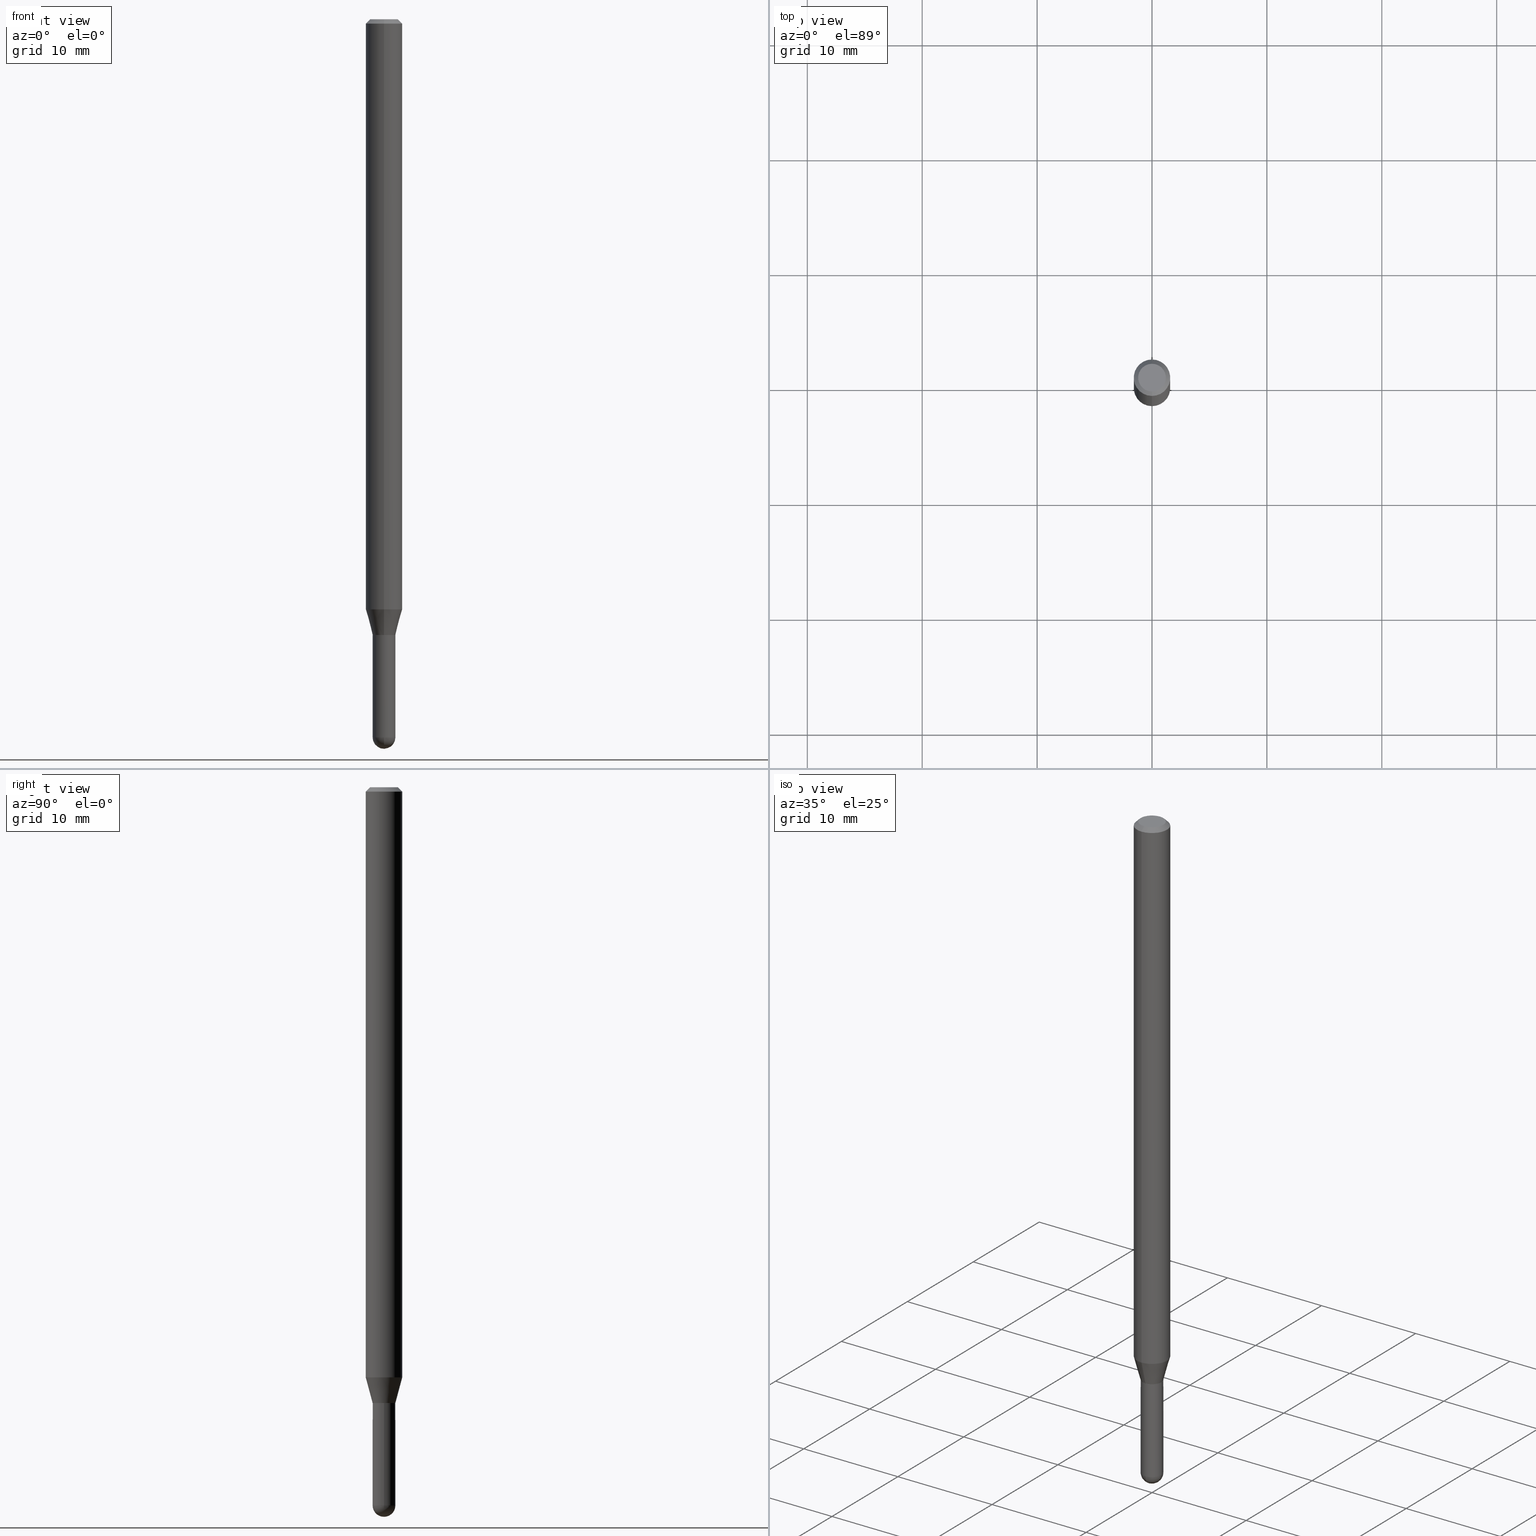
[diagram: canonical four-view strip — front | top / right | iso, engineering-drawing reading convention]
A machine part, canonical four-view strip (front | top / right | iso — engineering-drawing reading convention). The complete STEP part file that produces these views, byte-faithful:
ISO-10303-21;
HEADER;
FILE_DESCRIPTION (( 'STEP AP203' ),
    '1' );
FILE_NAME ('04471.STEP',
    '2024-03-08T19:51:53',
    ( '' ),
    ( '' ),
    'SwSTEP 2.0',
    'SolidWorks 2023',
    '' );
FILE_SCHEMA (( 'CONFIG_CONTROL_DESIGN' ));
ENDSEC;

DATA;
#1 = AXIS2_PLACEMENT_3D ( 'NONE', #416, #333, #370 ) ;
#2 = ORIENTED_EDGE ( 'NONE', *, *, #24, .F. ) ;
#3 = PERSON_AND_ORGANIZATION_ROLE ( 'design_supplier' ) ;
#4 = EDGE_LOOP ( 'NONE', ( #235, #188, #93, #381 ) ) ;
#5 = MANIFOLD_SOLID_BREP ( 'Body-Move/Copy2[1]', #218 ) ;
#6 = CARTESIAN_POINT ( 'NONE',  ( -2.688440630908695921E-16, -0.03850000000000736167, -2.109999999999999876 ) ) ;
#7 = DIRECTION ( 'NONE',  ( -6.982962677686266711E-15, -1.000000000000000000, 3.491435291352395773E-15 ) ) ;
#8 = VERTEX_POINT ( 'NONE', #94 ) ;
#9 = DIRECTION ( 'NONE',  ( -2.445500960976067798E-29, 3.491435291352395379E-15, 1.000000000000000000 ) ) ;
#10 = ADVANCED_FACE ( 'NONE', ( #122 ), #250, .F. ) ;
#11 = AXIS2_PLACEMENT_3D ( 'NONE', #207, #247, #363 ) ;
#12 = VECTOR ( 'NONE', #37, 39.37007874015748143 ) ;
#13 = PRODUCT_DEFINITION_FORMATION_WITH_SPECIFIED_SOURCE ( 'ANY', '', #325, .NOT_KNOWN. ) ;
#14 = FACE_OUTER_BOUND ( 'NONE', #507, .T. ) ;
#15 = CARTESIAN_POINT ( 'NONE',  ( 0.03899999999999999994, -8.252116144355773169E-15, -2.460999999999999854 ) ) ;
#16 = CYLINDRICAL_SURFACE ( 'NONE', #347, 0.06250000000000000000 ) ;
#17 = ADVANCED_FACE ( 'NONE', ( #209 ), #254, .T. ) ;
#18 = DIRECTION ( 'NONE',  ( -6.982962677686265922E-15, -1.000000000000000000, 4.370956789862821150E-15 ) ) ;
#19 = VECTOR ( 'NONE', #382, 39.37007874015748143 ) ;
#20 = DIRECTION ( 'NONE',  ( -2.445500960976067798E-29, 3.491435291352395379E-15, 1.000000000000000000 ) ) ;
#21 = DIRECTION ( 'NONE',  ( -6.982962677686265922E-15, -1.000000000000000000, 0.000000000000000000 ) ) ;
#22 = DIRECTION ( 'NONE',  ( -2.445500960976067798E-29, 3.491435291352395379E-15, 1.000000000000000000 ) ) ;
#23 = DIRECTION ( 'NONE',  ( -6.982962677686265922E-15, -1.000000000000000000, 3.491435291352395379E-15 ) ) ;
#24 = EDGE_CURVE ( 'NONE', #232, #312, #437, .T. ) ;
#25 = LINE ( 'NONE', #60, #69 ) ;
#26 = AXIS2_PLACEMENT_3D ( 'NONE', #66, #22, #21 ) ;
#27 = CC_DESIGN_APPROVAL ( #86, ( #355 ) ) ;
#28 = DIRECTION ( 'NONE',  ( -2.445468806185136597E-29, 3.491481338843145583E-15, 1.000000000000000000 ) ) ;
#29 = EDGE_LOOP ( 'NONE', ( #343, #398 ) ) ;
#30 = FACE_OUTER_BOUND ( 'NONE', #403, .T. ) ;
#31 = DIRECTION ( 'NONE',  ( 2.445500960976067798E-29, -3.491435291352395379E-15, -1.000000000000000000 ) ) ;
#32 = EDGE_CURVE ( 'NONE', #152, #161, #289, .T. ) ;
#33 = EDGE_LOOP ( 'NONE', ( #316, #459, #309, #160, #425 ) ) ;
#34 = APPROVAL_STATUS ( 'not_yet_approved' ) ;
#35 = ADVANCED_BREP_SHAPE_REPRESENTATION ( '04471', ( #5, #178, #480 ), #140 ) ;
#36 = DIMENSIONAL_EXPONENTS ( 1.000000000000000000, 0.000000000000000000, 0.000000000000000000, 0.000000000000000000, 0.000000000000000000, 0.000000000000000000, 0.000000000000000000 ) ;
#37 = DIRECTION ( 'NONE',  ( -2.445500960976067798E-29, 3.491435291352395379E-15, 1.000000000000000000 ) ) ;
#38 = EDGE_LOOP ( 'NONE', ( #435, #124, #116, #239 ) ) ;
#39 = PERSON_AND_ORGANIZATION_ROLE ( 'design_owner' ) ;
#40 = APPROVAL_PERSON_ORGANIZATION ( #164, #86, #76 ) ;
#41 = DIRECTION ( 'NONE',  ( -4.937700262167370586E-15, -0.7071067811869493624, 0.7071067811861454500 ) ) ;
#42 = VERTEX_POINT ( 'NONE', #52 ) ;
#43 = DATE_TIME_ROLE ( 'classification_date' ) ;
#44 = ORIENTED_EDGE ( 'NONE', *, *, #107, .T. ) ;
#45 = DATE_AND_TIME ( #352, #290 ) ;
#46 = ORIENTED_EDGE ( 'NONE', *, *, #301, .T. ) ;
#47 = CARTESIAN_POINT ( 'NONE',  ( 1.601862342554791260E-45, -2.286974654245064998E-31, -6.550242130820685356E-17 ) ) ;
#48 = PERSON_AND_ORGANIZATION_ROLE ( 'creator' ) ;
#49 = VECTOR ( 'NONE', #441, 39.37007874015748143 ) ;
#50 = ORIENTED_EDGE ( 'NONE', *, *, #72, .F. ) ;
#51 = CIRCLE ( 'NONE', #423, 0.03899999999999999994 ) ;
#52 = CARTESIAN_POINT ( 'NONE',  ( -0.03899999999999999994, -7.702668932979569039E-15, -2.110000000000000320 ) ) ;
#53 = DIRECTION ( 'NONE',  ( -6.982962677686265922E-15, -1.000000000000000000, 3.491435291352395379E-15 ) ) ;
#54 = ADVANCED_FACE ( 'NONE', ( #14 ), #16, .T. ) ;
#55 = ORIENTED_EDGE ( 'NONE', *, *, #503, .T. ) ;
#56 = VECTOR ( 'NONE', #302, 39.37007874015748854 ) ;
#57 = DIRECTION ( 'NONE',  ( -2.445500960976067798E-29, 3.491435291352395379E-15, 1.000000000000000000 ) ) ;
#58 = ADVANCED_FACE ( 'NONE', ( #396 ), #293, .F. ) ;
#59 = DIRECTION ( 'NONE',  ( -2.445500960976067798E-29, 3.491435291352395379E-15, 1.000000000000000000 ) ) ;
#60 = CARTESIAN_POINT ( 'NONE',  ( -4.287811248607203282E-16, -0.06250000000000005551, -0.01499999999999984852 ) ) ;
#61 = VECTOR ( 'NONE', #285, 39.37007874015748143 ) ;
#62 = CONICAL_SURFACE ( 'NONE', #460, 0.03849999999999999256, 0.7853981633980202659 ) ;
#63 = CARTESIAN_POINT ( 'NONE',  ( 1.601862342554791260E-45, -2.286974654245064998E-31, -6.550242130820685356E-17 ) ) ;
#64 = DIRECTION ( 'NONE',  ( -6.982962677686265922E-15, -1.000000000000000000, 3.491435291352395379E-15 ) ) ;
#65 = EDGE_CURVE ( 'NONE', #95, #42, #174, .T. ) ;
#66 = CARTESIAN_POINT ( 'NONE',  ( 5.160007027659503724E-29, -7.366928464753554588E-15, -2.110000000000000320 ) ) ;
#67 = CARTESIAN_POINT ( 'NONE',  ( -2.771116669463784777E-16, -0.03900000000000854172, -2.460999999999999854 ) ) ;
#68 = CARTESIAN_POINT ( 'NONE',  ( 6.112004441198941993E-29, -8.731091408366202985E-15, -2.500000000000000000 ) ) ;
#69 = VECTOR ( 'NONE', #181, 39.37007874015748143 ) ;
#70 = ORIENTED_EDGE ( 'NONE', *, *, #32, .F. ) ;
#71 = AXIS2_PLACEMENT_3D ( 'NONE', #223, #405, #23 ) ;
#72 = EDGE_CURVE ( 'NONE', #446, #8, #399, .T. ) ;
#73 = DIRECTION ( 'NONE',  ( 1.000000000000000000, -6.982962677686258033E-15, 0.000000000000000000 ) ) ;
#74 = EDGE_LOOP ( 'NONE', ( #354, #130, #119, #125 ) ) ;
#75 = DESIGN_CONTEXT ( 'detailed design', #278, 'design' ) ;
#76 = APPROVAL_ROLE ( '' ) ;
#77 = DIRECTION ( 'NONE',  ( -6.982962677686266711E-15, -1.000000000000000000, 0.000000000000000000 ) ) ;
#78 = ORIENTED_EDGE ( 'NONE', *, *, #65, .F. ) ;
#79 = CYLINDRICAL_SURFACE ( 'NONE', #479, 0.03899999999999999994 ) ;
#80 = ORIENTED_EDGE ( 'NONE', *, *, #133, .T. ) ;
#81 = CIRCLE ( 'NONE', #406, 0.03899999999999999994 ) ;
#82 = DATE_AND_TIME ( #317, #372 ) ;
#83 = CARTESIAN_POINT ( 'NONE',  ( 5.160007027659502603E-29, -7.366928464753553010E-15, -2.109999999999999876 ) ) ;
#84 = ORIENTED_EDGE ( 'NONE', *, *, #342, .F. ) ;
#85 = CC_DESIGN_PERSON_AND_ORGANIZATION_ASSIGNMENT ( #242, #3, ( #13 ) ) ;
#86 = APPROVAL ( #34, 'UNSPECIFIED' ) ;
#87 = CARTESIAN_POINT ( 'NONE',  ( 0.000000000000000000, 0.000000000000000000, 0.000000000000000000 ) ) ;
#88 = APPROVAL_STATUS ( 'not_yet_approved' ) ;
#89 = DIRECTION ( 'NONE',  ( -6.982962677686265922E-15, -1.000000000000000000, 3.491435291352395379E-15 ) ) ;
#90 = CIRCLE ( 'NONE', #248, 0.03899999999999964606 ) ;
#91 = ORGANIZATION ( 'UNSPECIFIED', 'UNSPECIFIED', '' ) ;
#92 = ADVANCED_FACE ( 'NONE', ( #404 ), #166, .T. ) ;
#93 = ORIENTED_EDGE ( 'NONE', *, *, #126, .F. ) ;
#94 = CARTESIAN_POINT ( 'NONE',  ( -3.773273898774340269E-16, -0.04749999999999999362, 1.003407550310319580E-16 ) ) ;
#95 = VERTEX_POINT ( 'NONE', #168 ) ;
#96 = VECTOR ( 'NONE', #105, 39.37007874015748143 ) ;
#97 = CARTESIAN_POINT ( 'NONE',  ( 0.000000000000000000, 0.000000000000000000, 0.000000000000000000 ) ) ;
#98 = DIRECTION ( 'NONE',  ( -2.445500960976067798E-29, 3.491435291352395379E-15, 1.000000000000000000 ) ) ;
#99 = CARTESIAN_POINT ( 'NONE',  ( 5.158784277179015445E-29, -7.365182747107878740E-15, -2.109500000000000153 ) ) ;
#100 = VECTOR ( 'NONE', #41, 39.37007874015748854 ) ;
#101 = ADVANCED_FACE ( 'NONE', ( #327 ), #252, .T. ) ;
#102 = DIRECTION ( 'NONE',  ( -6.982962677686265922E-15, -1.000000000000000000, 0.000000000000000000 ) ) ;
#103 = DIRECTION ( 'NONE',  ( 2.438088387897960049E-29, -3.491481338843145188E-15, -1.000000000000000000 ) ) ;
#104 = DIRECTION ( 'NONE',  ( 6.982962677686265922E-15, 1.000000000000000000, 0.000000000000000000 ) ) ;
#105 = DIRECTION ( 'NONE',  ( -2.445468806185136877E-29, 3.491481338843145188E-15, 1.000000000000000000 ) ) ;
#106 = VERTEX_POINT ( 'NONE', #445 ) ;
#107 = EDGE_CURVE ( 'NONE', #152, #232, #414, .T. ) ;
#108 = DIRECTION ( 'NONE',  ( 1.000000000000000000, -6.982962677686283277E-15, 0.000000000000000000 ) ) ;
#109 = VECTOR ( 'NONE', #57, 39.37007874015748143 ) ;
#110 = AXIS2_PLACEMENT_3D ( 'NONE', #350, #147, #430 ) ;
#111 = EDGE_LOOP ( 'NONE', ( #70, #474, #157, #200 ) ) ;
#112 = DIRECTION ( 'NONE',  ( -2.445500960976067798E-29, 3.491435291352395379E-15, 1.000000000000000000 ) ) ;
#113 = EDGE_LOOP ( 'NONE', ( #78, #421, #244, #46, #389 ) ) ;
#114 = DATE_AND_TIME ( #357, #170 ) ;
#115 = DIRECTION ( 'NONE',  ( -2.445500960976067798E-29, 3.491435291352395379E-15, 1.000000000000000000 ) ) ;
#116 = ORIENTED_EDGE ( 'NONE', *, *, #362, .F. ) ;
#117 = DIRECTION ( 'NONE',  ( -6.982962677686266711E-15, -1.000000000000000000, 0.000000000000000000 ) ) ;
#118 = EDGE_CURVE ( 'NONE', #232, #383, #337, .T. ) ;
#119 = ORIENTED_EDGE ( 'NONE', *, *, #295, .T. ) ;
#120 = AXIS2_PLACEMENT_3D ( 'NONE', #186, #457, #77 ) ;
#121 = PERSON_AND_ORGANIZATION ( #221, #91 ) ;
#122 = FACE_OUTER_BOUND ( 'NONE', #280, .T. ) ;
#123 = COORDINATED_UNIVERSAL_TIME_OFFSET ( 5, 0, .BEHIND. ) ;
#124 = ORIENTED_EDGE ( 'NONE', *, *, #331, .T. ) ;
#125 = ORIENTED_EDGE ( 'NONE', *, *, #418, .F. ) ;
#126 = EDGE_CURVE ( 'NONE', #383, #161, #261, .T. ) ;
#127 = DIRECTION ( 'NONE',  ( 1.000000000000000000, -6.982962677686265922E-15, 4.876176775795935793E-29 ) ) ;
#128 = AXIS2_PLACEMENT_3D ( 'NONE', #97, #214, #141 ) ;
#129 = CONICAL_SURFACE ( 'NONE', #26, 0.03899999999999964606, 0.2617993877991566798 ) ;
#130 = ORIENTED_EDGE ( 'NONE', *, *, #201, .T. ) ;
#131 = CARTESIAN_POINT ( 'NONE',  ( -2.723355444297103312E-16, -0.03900000000000701517, -2.110000000000000320 ) ) ;
#132 = CARTESIAN_POINT ( 'NONE',  ( 6.018298732021620914E-29, -8.592535574892981353E-15, -2.460999999999999854 ) ) ;
#133 = EDGE_CURVE ( 'NONE', #312, #149, #443, .T. ) ;
#134 = CIRCLE ( 'NONE', #282, 0.06250000000000000000 ) ;
#135 = CARTESIAN_POINT ( 'NONE',  ( -2.723355444297638258E-16, -0.03899999999999992362, 1.361659763627431492E-16 ) ) ;
#136 = DIRECTION ( 'NONE',  ( 1.000000000000000000, -6.982962677686258033E-15, 0.000000000000000000 ) ) ;
#137 = CC_DESIGN_PERSON_AND_ORGANIZATION_ASSIGNMENT ( #159, #394, ( #359 ) ) ;
#138 = FACE_OUTER_BOUND ( 'NONE', #195, .T. ) ;
#139 = AXIS2_PLACEMENT_3D ( 'NONE', #83, #271, #240 ) ;
#140 =( GEOMETRIC_REPRESENTATION_CONTEXT ( 3 ) GLOBAL_UNCERTAINTY_ASSIGNED_CONTEXT ( ( #217 ) ) GLOBAL_UNIT_ASSIGNED_CONTEXT ( ( #377, #340, #473 ) ) REPRESENTATION_CONTEXT ( 'NONE', 'WORKASPACE' ) );
#141 = DIRECTION ( 'NONE',  ( -6.982962677686265922E-15, -1.000000000000000000, 3.491435291352395379E-15 ) ) ;
#142 = CARTESIAN_POINT ( 'NONE',  ( 4.364351673553919652E-16, 0.06249999999999995143, -0.01500000000000028394 ) ) ;
#143 = EDGE_CURVE ( 'NONE', #468, #161, #375, .T. ) ;
#144 = CARTESIAN_POINT ( 'NONE',  ( 3.668251441464117918E-31, -5.237152937028615846E-17, -0.01500000000000006710 ) ) ;
#145 = ORIENTED_EDGE ( 'NONE', *, *, #153, .T. ) ;
#146 = PLANE ( 'NONE',  #71 ) ;
#147 = DIRECTION ( 'NONE',  ( -2.445468806185136597E-29, 3.491481338843145583E-15, 1.000000000000000000 ) ) ;
#148 = CIRCLE ( 'NONE', #219, 0.03899999999999999994 ) ;
#149 = VERTEX_POINT ( 'NONE', #224 ) ;
#150 = APPROVAL_ROLE ( '' ) ;
#151 = FACE_OUTER_BOUND ( 'NONE', #33, .T. ) ;
#152 = VERTEX_POINT ( 'NONE', #265 ) ;
#153 = EDGE_CURVE ( 'NONE', #232, #152, #90, .T. ) ;
#154 = DIRECTION ( 'NONE',  ( -2.445500960976067798E-29, 3.491435291352395379E-15, 1.000000000000000000 ) ) ;
#155 = ORIENTED_EDGE ( 'NONE', *, *, #32, .T. ) ;
#156 = SHAPE_DEFINITION_REPRESENTATION ( #314, #35 ) ;
#157 = ORIENTED_EDGE ( 'NONE', *, *, #118, .T. ) ;
#158 = AXIS2_PLACEMENT_3D ( 'NONE', #165, #249, #269 ) ;
#159 = PERSON_AND_ORGANIZATION ( #221, #91 ) ;
#160 = ORIENTED_EDGE ( 'NONE', *, *, #301, .F. ) ;
#161 = VERTEX_POINT ( 'NONE', #264 ) ;
#162 = PRODUCT_RELATED_PRODUCT_CATEGORY ( 'detail', '', ( #325 ) ) ;
#163 = ADVANCED_FACE ( 'NONE', ( #216 ), #260, .T. ) ;
#164 = PERSON_AND_ORGANIZATION ( #221, #91 ) ;
#165 = CARTESIAN_POINT ( 'NONE',  ( 5.160007027659502603E-29, -7.366928464753553010E-15, -2.109999999999999876 ) ) ;
#166 = CYLINDRICAL_SURFACE ( 'NONE', #502, 0.03899999999999999994 ) ;
#167 = ORIENTED_EDGE ( 'NONE', *, *, #274, .F. ) ;
#168 = CARTESIAN_POINT ( 'NONE',  ( -0.03899999999999999994, -7.702668932979569039E-15, -2.460999999999999854 ) ) ;
#169 = CIRCLE ( 'NONE', #237, 0.06250000000000000000 ) ;
#170 = LOCAL_TIME ( 14, 51, 53.00000000000000000, #123 ) ;
#171 = EDGE_LOOP ( 'NONE', ( #145, #272, #199, #2 ) ) ;
#172 = CC_DESIGN_PERSON_AND_ORGANIZATION_ASSIGNMENT ( #284, #346, ( #13 ) ) ;
#173 = APPROVAL ( #88, 'UNSPECIFIED' ) ;
#174 = LINE ( 'NONE', #402, #61 ) ;
#175 = DIRECTION ( 'NONE',  ( -2.445500960976067798E-29, 3.491435291352395379E-15, 1.000000000000000000 ) ) ;
#176 = AXIS2_PLACEMENT_3D ( 'NONE', #47, #9, #7 ) ;
#177 = CIRCLE ( 'NONE', #358, 0.03899999999999989586 ) ;
#178 = MANIFOLD_SOLID_BREP ( 'Body-Move/Copy2[2]', #202 ) ;
#179 = CARTESIAN_POINT ( 'NONE',  ( 5.159939181050639071E-29, -7.367025624959036939E-15, -2.110000000000000320 ) ) ;
#180 = ADVANCED_FACE ( 'NONE', ( #298 ), #129, .T. ) ;
#181 = DIRECTION ( 'NONE',  ( -4.851104656540964275E-15, -0.7071067811865500152, -0.7071067811865450192 ) ) ;
#182 = CARTESIAN_POINT ( 'NONE',  ( 0.000000000000000000, 0.000000000000000000, 0.000000000000000000 ) ) ;
#183 = CARTESIAN_POINT ( 'NONE',  ( 2.723355444298159400E-16, 0.03899999999999263084, -2.110000000000000320 ) ) ;
#184 = ADVANCED_FACE ( 'NONE', ( #138 ), #194, .T. ) ;
#185 = LOCAL_TIME ( 14, 51, 53.00000000000000000, #310 ) ;
#186 = CARTESIAN_POINT ( 'NONE',  ( 5.160007027659502603E-29, -7.366928464753553010E-15, -2.109999999999999876 ) ) ;
#187 = DIRECTION ( 'NONE',  ( 2.445500960976067798E-29, -3.491435291352395379E-15, -1.000000000000000000 ) ) ;
#188 = ORIENTED_EDGE ( 'NONE', *, *, #143, .T. ) ;
#189 = DIRECTION ( 'NONE',  ( -6.982962677686266711E-15, -1.000000000000000000, 3.491435291352395773E-15 ) ) ;
#190 = ORIENTED_EDGE ( 'NONE', *, *, #253, .F. ) ;
#191 = PERSON_AND_ORGANIZATION ( #221, #91 ) ;
#192 = AXIS2_PLACEMENT_3D ( 'NONE', #410, #20, #334 ) ;
#193 = CARTESIAN_POINT ( 'NONE',  ( 5.160007027659502603E-29, -7.366928464753553010E-15, -2.109999999999999876 ) ) ;
#194 = CONICAL_SURFACE ( 'NONE', #307, 0.03899999999999964606, 0.2617993877991566798 ) ;
#195 = EDGE_LOOP ( 'NONE', ( #167, #44, #208, #428 ) ) ;
#196 = EDGE_CURVE ( 'NONE', #8, #345, #25, .T. ) ;
#197 = CALENDAR_DATE ( 2024, 8, 3 ) ;
#198 = CARTESIAN_POINT ( 'NONE',  ( -4.364351673553916201E-16, -0.06250000000000000000, 2.182147057095247112E-16 ) ) ;
#199 = ORIENTED_EDGE ( 'NONE', *, *, #133, .F. ) ;
#200 = ORIENTED_EDGE ( 'NONE', *, *, #126, .T. ) ;
#201 = EDGE_CURVE ( 'NONE', #149, #312, #270, .T. ) ;
#202 = CLOSED_SHELL ( 'NONE', ( #10, #336, #390, #54, #180, #184, #163, #452, #58, #495, #431, #243 ) ) ;
#203 = DIRECTION ( 'NONE',  ( -2.445500960976067798E-29, 3.491435291352395379E-15, 1.000000000000000000 ) ) ;
#204 = AXIS2_PLACEMENT_3D ( 'NONE', #279, #28, #73 ) ;
#205 = CALENDAR_DATE ( 2024, 8, 3 ) ;
#206 = ORIENTED_EDGE ( 'NONE', *, *, #196, .T. ) ;
#207 = CARTESIAN_POINT ( 'NONE',  ( 3.316907271900976096E-16, 0.04749999999999999362, -1.985943869933421890E-16 ) ) ;
#208 = ORIENTED_EDGE ( 'NONE', *, *, #24, .T. ) ;
#209 = FACE_OUTER_BOUND ( 'NONE', #444, .T. ) ;
#210 = ORIENTED_EDGE ( 'NONE', *, *, #374, .T. ) ;
#211 = AXIS2_PLACEMENT_3D ( 'NONE', #449, #175, #491 ) ;
#212 = CC_DESIGN_PERSON_AND_ORGANIZATION_ASSIGNMENT ( #121, #39, ( #325 ) ) ;
#213 = ORIENTED_EDGE ( 'NONE', *, *, #143, .F. ) ;
#214 = DIRECTION ( 'NONE',  ( -2.445500960976067798E-29, 3.491435291352395379E-15, 1.000000000000000000 ) ) ;
#215 = EDGE_CURVE ( 'NONE', #407, #276, #371, .T. ) ;
#216 = FACE_OUTER_BOUND ( 'NONE', #74, .T. ) ;
#217 = UNCERTAINTY_MEASURE_WITH_UNIT (LENGTH_MEASURE( 1.000000000000000082E-05 ), #377, 'distance_accuracy_value', 'NONE');
#218 = CLOSED_SHELL ( 'NONE', ( #400, #101, #488, #17, #92 ) ) ;
#219 = AXIS2_PLACEMENT_3D ( 'NONE', #179, #369, #136 ) ;
#220 = DIRECTION ( 'NONE',  ( -2.445500960976067798E-29, 3.491435291352395379E-15, 1.000000000000000000 ) ) ;
#221 = PERSON ( 'UNSPECIFIED', 'UNSPECIFIED', 'UNSPECIFIED', ('UNSPECIFIED'), ('UNSPECIFIED'), ('UNSPECIFIED') ) ;
#222 = DIRECTION ( 'NONE',  ( -6.982962677686266711E-15, -1.000000000000000000, 0.000000000000000000 ) ) ;
#223 = CARTESIAN_POINT ( 'NONE',  ( 5.160007027659503724E-29, -7.366928464753554588E-15, -2.110000000000000320 ) ) ;
#224 = CARTESIAN_POINT ( 'NONE',  ( 4.440892098501117228E-16, 0.06249999999999289457, -2.022296806022132909 ) ) ;
#225 = LENGTH_MEASURE_WITH_UNIT ( LENGTH_MEASURE( 0.02539999999999999897 ), #493 );
#226 = AXIS2_PLACEMENT_3D ( 'NONE', #329, #475, #53 ) ;
#227 = AXIS2_PLACEMENT_3D ( 'NONE', #99, #490, #222 ) ;
#228 = APPROVAL_PERSON_ORGANIZATION ( #273, #257, #150 ) ;
#229 = LINE ( 'NONE', #388, #100 ) ;
#230 = ORIENTED_EDGE ( 'NONE', *, *, #472, .T. ) ;
#231 = CARTESIAN_POINT ( 'NONE',  ( 3.668251441464117918E-31, -5.237152937028615846E-17, -0.01500000000000006710 ) ) ;
#232 = VERTEX_POINT ( 'NONE', #299 ) ;
#233 = COORDINATED_UNIVERSAL_TIME_OFFSET ( 5, 0, .BEHIND. ) ;
#234 = CARTESIAN_POINT ( 'NONE',  ( 6.018298732021620914E-29, -8.592535574892981353E-15, -2.460999999999999854 ) ) ;
#235 = ORIENTED_EDGE ( 'NONE', *, *, #439, .T. ) ;
#236 = DIRECTION ( 'NONE',  ( 1.000000000000000000, -6.982962677686265922E-15, 4.876176775795935793E-29 ) ) ;
#237 = AXIS2_PLACEMENT_3D ( 'NONE', #144, #315, #500 ) ;
#238 = CC_DESIGN_SECURITY_CLASSIFICATION ( #359, ( #13 ) ) ;
#239 = ORIENTED_EDGE ( 'NONE', *, *, #447, .F. ) ;
#240 = DIRECTION ( 'NONE',  ( -6.982962677686266711E-15, -1.000000000000000000, 0.000000000000000000 ) ) ;
#241 = ORIENTED_EDGE ( 'NONE', *, *, #412, .T. ) ;
#242 = PERSON_AND_ORGANIZATION ( #221, #91 ) ;
#243 = ADVANCED_FACE ( 'NONE', ( #332 ), #454, .F. ) ;
#244 = ORIENTED_EDGE ( 'NONE', *, *, #481, .T. ) ;
#245 = DATE_TIME_ROLE ( 'creation_date' ) ;
#246 = ORIENTED_EDGE ( 'NONE', *, *, #215, .T. ) ;
#247 = DIRECTION ( 'NONE',  ( 2.445500960976067238E-29, -3.491435291352395379E-15, -1.000000000000000000 ) ) ;
#248 = AXIS2_PLACEMENT_3D ( 'NONE', #451, #98, #102 ) ;
#249 = DIRECTION ( 'NONE',  ( -2.445500960976067798E-29, 3.491435291352395379E-15, 1.000000000000000000 ) ) ;
#250 = CYLINDRICAL_SURFACE ( 'NONE', #226, 0.03899999999999992362 ) ;
#251 = APPLICATION_CONTEXT ( 'configuration controlled 3d designs of mechanical parts and assemblies' ) ;
#252 = SPHERICAL_SURFACE ( 'NONE', #288, 0.03899999999999989586 ) ;
#253 = EDGE_CURVE ( 'NONE', #498, #276, #51, .T. ) ;
#254 = SPHERICAL_SURFACE ( 'NONE', #485, 0.03899999999999989586 ) ;
#255 = CONICAL_SURFACE ( 'NONE', #378, 0.06250000000000000000, 0.7853981633974483900 ) ;
#256 = DIRECTION ( 'NONE',  ( -1.000000000000000000, 6.982962677686265922E-15, -4.883557194083112340E-29 ) ) ;
#257 = APPROVAL ( #426, 'UNSPECIFIED' ) ;
#258 = EDGE_CURVE ( 'NONE', #42, #395, #148, .T. ) ;
#259 = LINE ( 'NONE', #413, #262 ) ;
#260 = CYLINDRICAL_SURFACE ( 'NONE', #128, 0.06250000000000000000 ) ;
#261 = CIRCLE ( 'NONE', #227, 0.03900000000000019423 ) ;
#262 = VECTOR ( 'NONE', #453, 39.37007874015748143 ) ;
#263 = AXIS2_PLACEMENT_3D ( 'NONE', #330, #482, #304 ) ;
#264 = CARTESIAN_POINT ( 'NONE',  ( 2.771116669464910383E-16, 0.03899999999999268635, -2.109500000000000153 ) ) ;
#265 = CARTESIAN_POINT ( 'NONE',  ( 3.606004383983001233E-16, 0.03899999999999227696, -2.110000000000000320 ) ) ;
#266 = CC_DESIGN_PERSON_AND_ORGANIZATION_ASSIGNMENT ( #191, #48, ( #355 ) ) ;
#267 = CARTESIAN_POINT ( 'NONE',  ( 0.03899999999999999994, -7.639361169388800962E-15, -2.110000000000000320 ) ) ;
#268 = ORIENTED_EDGE ( 'NONE', *, *, #72, .T. ) ;
#269 = DIRECTION ( 'NONE',  ( -6.982962677686266711E-15, -1.000000000000000000, 0.000000000000000000 ) ) ;
#270 = CIRCLE ( 'NONE', #211, 0.06250000000000000000 ) ;
#271 = DIRECTION ( 'NONE',  ( -2.445500960976067798E-29, 3.491435291352395379E-15, 1.000000000000000000 ) ) ;
#272 = ORIENTED_EDGE ( 'NONE', *, *, #274, .T. ) ;
#273 = PERSON_AND_ORGANIZATION ( #221, #91 ) ;
#274 = EDGE_CURVE ( 'NONE', #152, #149, #259, .T. ) ;
#275 = CARTESIAN_POINT ( 'NONE',  ( 0.000000000000000000, 0.000000000000000000, 0.000000000000000000 ) ) ;
#276 = VERTEX_POINT ( 'NONE', #411 ) ;
#277 = APPROVAL_DATE_TIME ( #429, #257 ) ;
#278 = APPLICATION_CONTEXT ( 'configuration controlled 3d designs of mechanical parts and assemblies' ) ;
#279 = CARTESIAN_POINT ( 'NONE',  ( 5.159939181050639071E-29, -7.367025624959036939E-15, -2.110000000000000320 ) ) ;
#280 = EDGE_LOOP ( 'NONE', ( #432, #155, #55, #442 ) ) ;
#281 = CARTESIAN_POINT ( 'NONE',  ( 4.440892098500625669E-16, 0.06250000000000000000, -2.182147057095247112E-16 ) ) ;
#282 = AXIS2_PLACEMENT_3D ( 'NONE', #434, #112, #464 ) ;
#283 = ORIENTED_EDGE ( 'NONE', *, *, #291, .T. ) ;
#284 = PERSON_AND_ORGANIZATION ( #221, #91 ) ;
#285 = DIRECTION ( 'NONE',  ( -2.445468806185136877E-29, 3.491481338843145188E-15, 1.000000000000000000 ) ) ;
#286 = CARTESIAN_POINT ( 'NONE',  ( 6.014963583493821915E-29, -8.597311697409657438E-15, -2.461000000000000298 ) ) ;
#287 = ORIENTED_EDGE ( 'NONE', *, *, #295, .F. ) ;
#288 = AXIS2_PLACEMENT_3D ( 'NONE', #487, #256, #104 ) ;
#289 = LINE ( 'NONE', #365, #109 ) ;
#290 = LOCAL_TIME ( 14, 51, 53.00000000000000000, #466 ) ;
#291 = EDGE_CURVE ( 'NONE', #8, #446, #505, .T. ) ;
#292 = DIRECTION ( 'NONE',  ( 6.982962677686265922E-15, 1.000000000000000000, 0.000000000000000000 ) ) ;
#293 = PLANE ( 'NONE',  #11 ) ;
#294 = CARTESIAN_POINT ( 'NONE',  ( 4.945528782505957830E-29, -7.060718438134903621E-15, -2.022296806022132909 ) ) ;
#295 = EDGE_CURVE ( 'NONE', #312, #345, #392, .T. ) ;
#296 = CIRCLE ( 'NONE', #110, 0.03899999999999999994 ) ;
#297 = DIRECTION ( 'NONE',  ( -2.445500960976067798E-29, 3.491435291352395379E-15, 1.000000000000000000 ) ) ;
#298 = FACE_OUTER_BOUND ( 'NONE', #171, .T. ) ;
#299 = CARTESIAN_POINT ( 'NONE',  ( -2.723355444297103312E-16, -0.03900000000000701517, -2.110000000000000320 ) ) ;
#300 = LOCAL_TIME ( 14, 51, 53.00000000000000000, #321 ) ;
#301 = EDGE_CURVE ( 'NONE', #498, #395, #461, .T. ) ;
#302 = DIRECTION ( 'NONE',  ( 5.024295867790934632E-15, 0.7071067811869542474, 0.7071067811861405650 ) ) ;
#303 = FACE_OUTER_BOUND ( 'NONE', #322, .T. ) ;
#304 = DIRECTION ( 'NONE',  ( -6.982962677686266711E-15, -1.000000000000000000, 0.000000000000000000 ) ) ;
#305 = DIRECTION ( 'NONE',  ( -2.445468806185136597E-29, 3.491481338843145583E-15, 1.000000000000000000 ) ) ;
#306 = ORIENTED_EDGE ( 'NONE', *, *, #481, .F. ) ;
#307 = AXIS2_PLACEMENT_3D ( 'NONE', #373, #417, #376 ) ;
#308 = DIRECTION ( 'NONE',  ( 6.982962677686265922E-15, 1.000000000000000000, -3.483106191921935554E-15 ) ) ;
#309 = ORIENTED_EDGE ( 'NONE', *, *, #374, .F. ) ;
#310 = COORDINATED_UNIVERSAL_TIME_OFFSET ( 5, 0, .BEHIND. ) ;
#311 = DIRECTION ( 'NONE',  ( -2.445468806185136597E-29, 3.491481338843145583E-15, 1.000000000000000000 ) ) ;
#312 = VERTEX_POINT ( 'NONE', #508 ) ;
#313 = APPLICATION_PROTOCOL_DEFINITION ( 'international standard', 'config_control_design', 1994, #278 ) ;
#314 = PRODUCT_DEFINITION_SHAPE ( 'NONE', 'NONE',  #355 ) ;
#315 = DIRECTION ( 'NONE',  ( -2.445500960976067798E-29, 3.491435291352395379E-15, 1.000000000000000000 ) ) ;
#316 = ORIENTED_EDGE ( 'NONE', *, *, #447, .T. ) ;
#317 = CALENDAR_DATE ( 2024, 8, 3 ) ;
#318 = AXIS2_PLACEMENT_3D ( 'NONE', #182, #483, #64 ) ;
#319 = CC_DESIGN_DATE_AND_TIME_ASSIGNMENT ( #82, #245, ( #355 ) ) ;
#320 = EDGE_LOOP ( 'NONE', ( #462, #50, #386, #501 ) ) ;
#321 = COORDINATED_UNIVERSAL_TIME_OFFSET ( 5, 0, .BEHIND. ) ;
#322 = EDGE_LOOP ( 'NONE', ( #323, #206, #512, #356 ) ) ;
#323 = ORIENTED_EDGE ( 'NONE', *, *, #291, .F. ) ;
#324 = DATE_AND_TIME ( #205, #300 ) ;
#325 = PRODUCT ( '04471', '04471', '', ( #469 ) ) ;
#326 = CARTESIAN_POINT ( 'NONE',  ( 0.000000000000000000, 0.000000000000000000, 0.000000000000000000 ) ) ;
#327 = FACE_OUTER_BOUND ( 'NONE', #38, .T. ) ;
#328 = CC_DESIGN_APPROVAL ( #257, ( #359 ) ) ;
#329 = CARTESIAN_POINT ( 'NONE',  ( 0.000000000000000000, 0.000000000000000000, 0.000000000000000000 ) ) ;
#330 = CARTESIAN_POINT ( 'NONE',  ( 5.158784277179015445E-29, -7.365182747107878740E-15, -2.109500000000000153 ) ) ;
#331 = EDGE_CURVE ( 'NONE', #407, #510, #177, .T. ) ;
#332 = FACE_OUTER_BOUND ( 'NONE', #111, .T. ) ;
#333 = DIRECTION ( 'NONE',  ( 1.000000000000000000, -6.982962677686265922E-15, 4.883557194083112340E-29 ) ) ;
#334 = DIRECTION ( 'NONE',  ( -6.982962677686265922E-15, -1.000000000000000000, 0.000000000000000000 ) ) ;
#335 = DIRECTION ( 'NONE',  ( 1.000000000000000000, -6.982962677686283277E-15, 0.000000000000000000 ) ) ;
#336 = ADVANCED_FACE ( 'NONE', ( #458 ), #62, .T. ) ;
#337 = LINE ( 'NONE', #135, #478 ) ;
#338 = AXIS2_PLACEMENT_3D ( 'NONE', #484, #419, #499 ) ;
#339 = CARTESIAN_POINT ( 'NONE',  ( 0.03899999999999999994, -2.723355444297643682E-16, 1.901708942560414931E-30 ) ) ;
#340 =( NAMED_UNIT ( * ) PLANE_ANGLE_UNIT ( ) SI_UNIT ( $, .RADIAN. ) );
#341 = CARTESIAN_POINT ( 'NONE',  ( 3.668251441464117918E-31, -5.237152937028615846E-17, -0.01500000000000006710 ) ) ;
#342 = EDGE_CURVE ( 'NONE', #345, #106, #134, .T. ) ;
#343 = ORIENTED_EDGE ( 'NONE', *, *, #439, .F. ) ;
#344 = LINE ( 'NONE', #142, #19 ) ;
#345 = VERTEX_POINT ( 'NONE', #496 ) ;
#346 = PERSON_AND_ORGANIZATION_ROLE ( 'creator' ) ;
#347 = AXIS2_PLACEMENT_3D ( 'NONE', #87, #203, #89 ) ;
#348 = AXIS2_PLACEMENT_3D ( 'NONE', #341, #187, #506 ) ;
#349 = CIRCLE ( 'NONE', #204, 0.03899999999999999994 ) ;
#350 = CARTESIAN_POINT ( 'NONE',  ( 6.018298732021620914E-29, -8.592535574892981353E-15, -2.460999999999999854 ) ) ;
#351 = ORIENTED_EDGE ( 'NONE', *, *, #258, .T. ) ;
#352 = CALENDAR_DATE ( 2024, 8, 3 ) ;
#353 = DIRECTION ( 'NONE',  ( -1.000000000000000000, 7.105427357601001070E-15, -4.926315508542082329E-29 ) ) ;
#354 = ORIENTED_EDGE ( 'NONE', *, *, #412, .F. ) ;
#355 = PRODUCT_DEFINITION ( 'UNKNOWN', '', #13, #75 ) ;
#356 = ORIENTED_EDGE ( 'NONE', *, *, #379, .F. ) ;
#357 = CALENDAR_DATE ( 2024, 8, 3 ) ;
#358 = AXIS2_PLACEMENT_3D ( 'NONE', #385, #353, #427 ) ;
#359 = SECURITY_CLASSIFICATION ( '', '', #511 ) ;
#360 = DIRECTION ( 'NONE',  ( -1.000000000000000000, 6.982962677686265922E-15, -4.883557194083112340E-29 ) ) ;
#361 = ORIENTED_EDGE ( 'NONE', *, *, #409, .T. ) ;
#362 = EDGE_CURVE ( 'NONE', #95, #510, #296, .T. ) ;
#363 = DIRECTION ( 'NONE',  ( 6.982962677686265922E-15, 1.000000000000000000, -3.491435291352395379E-15 ) ) ;
#364 = CONICAL_SURFACE ( 'NONE', #139, 0.03849999999999999256, 0.7853981633980202659 ) ;
#365 = CARTESIAN_POINT ( 'NONE',  ( 2.771116669464384311E-16, 0.03899999999999992362, -1.361659763627431492E-16 ) ) ;
#366 = AXIS2_PLACEMENT_3D ( 'NONE', #183, #103, #456 ) ;
#367 = FACE_OUTER_BOUND ( 'NONE', #29, .T. ) ;
#368 = EDGE_LOOP ( 'NONE', ( #268, #283 ) ) ;
#369 = DIRECTION ( 'NONE',  ( -2.445468806185136597E-29, 3.491481338843145583E-15, 1.000000000000000000 ) ) ;
#370 = DIRECTION ( 'NONE',  ( 6.982962677686265922E-15, 1.000000000000000000, 0.000000000000000000 ) ) ;
#371 = CIRCLE ( 'NONE', #1, 0.03899999999999989586 ) ;
#372 = LOCAL_TIME ( 14, 51, 53.00000000000000000, #233 ) ;
#373 = CARTESIAN_POINT ( 'NONE',  ( 5.160007027659503724E-29, -7.366928464753554588E-15, -2.110000000000000320 ) ) ;
#374 = EDGE_CURVE ( 'NONE', #395, #42, #349, .T. ) ;
#375 = LINE ( 'NONE', #455, #56 ) ;
#376 = DIRECTION ( 'NONE',  ( -6.982962677686265922E-15, -1.000000000000000000, 0.000000000000000000 ) ) ;
#377 =( CONVERSION_BASED_UNIT ( 'INCH', #225 ) LENGTH_UNIT ( ) NAMED_UNIT ( #36 ) );
#378 = AXIS2_PLACEMENT_3D ( 'NONE', #231, #31, #308 ) ;
#379 = EDGE_CURVE ( 'NONE', #446, #106, #344, .T. ) ;
#380 = CARTESIAN_POINT ( 'NONE',  ( 3.840629472727447874E-16, 0.04749999999999999362, -2.313455976474456035E-16 ) ) ;
#381 = ORIENTED_EDGE ( 'NONE', *, *, #409, .F. ) ;
#382 = DIRECTION ( 'NONE',  ( 4.937700262164548042E-15, 0.7071067811865451302, -0.7071067811865499042 ) ) ;
#383 = VERTEX_POINT ( 'NONE', #420 ) ;
#384 = CARTESIAN_POINT ( 'NONE',  ( 0.000000000000000000, 0.000000000000000000, 0.000000000000000000 ) ) ;
#385 = CARTESIAN_POINT ( 'NONE',  ( 6.014963583493821915E-29, -8.597311697409657438E-15, -2.461000000000000298 ) ) ;
#386 = ORIENTED_EDGE ( 'NONE', *, *, #379, .T. ) ;
#387 = VECTOR ( 'NONE', #154, 39.37007874015748143 ) ;
#388 = CARTESIAN_POINT ( 'NONE',  ( -2.688440630908695921E-16, -0.03850000000000736167, -2.109999999999999876 ) ) ;
#389 = ORIENTED_EDGE ( 'NONE', *, *, #258, .F. ) ;
#390 = ADVANCED_FACE ( 'NONE', ( #303 ), #486, .T. ) ;
#391 = APPROVAL_DATE_TIME ( #45, #173 ) ;
#392 = LINE ( 'NONE', #198, #12 ) ;
#393 = EDGE_LOOP ( 'NONE', ( #213, #230, #361, #509 ) ) ;
#394 = PERSON_AND_ORGANIZATION_ROLE ( 'classification_officer' ) ;
#395 = VERTEX_POINT ( 'NONE', #267 ) ;
#396 = FACE_OUTER_BOUND ( 'NONE', #368, .T. ) ;
#397 = APPROVAL_ROLE ( '' ) ;
#398 = ORIENTED_EDGE ( 'NONE', *, *, #472, .F. ) ;
#399 = CIRCLE ( 'NONE', #176, 0.04749999999999999362 ) ;
#400 = ADVANCED_FACE ( 'NONE', ( #151 ), #79, .T. ) ;
#401 = APPROVAL_PERSON_ORGANIZATION ( #476, #173, #397 ) ;
#402 = CARTESIAN_POINT ( 'NONE',  ( -0.03899999999999999994, 2.771116669464390721E-16, -1.918384685199413078E-30 ) ) ;
#403 = EDGE_LOOP ( 'NONE', ( #210, #351 ) ) ;
#404 = FACE_OUTER_BOUND ( 'NONE', #113, .T. ) ;
#405 = DIRECTION ( 'NONE',  ( -2.445500960976067238E-29, 3.491435291352395379E-15, 1.000000000000000000 ) ) ;
#406 = AXIS2_PLACEMENT_3D ( 'NONE', #234, #305, #108 ) ;
#407 = VERTEX_POINT ( 'NONE', #68 ) ;
#408 = CC_DESIGN_APPROVAL ( #173, ( #13 ) ) ;
#409 = EDGE_CURVE ( 'NONE', #471, #383, #229, .T. ) ;
#410 = CARTESIAN_POINT ( 'NONE',  ( 5.160007027659503724E-29, -7.366928464753554588E-15, -2.110000000000000320 ) ) ;
#411 = CARTESIAN_POINT ( 'NONE',  ( 2.723355444298241737E-16, 0.03899999999999134714, -2.460999999999999854 ) ) ;
#412 = EDGE_CURVE ( 'NONE', #149, #106, #497, .T. ) ;
#413 = CARTESIAN_POINT ( 'NONE',  ( 2.771116669464881294E-16, 0.03899999999999227696, -2.110000000000000320 ) ) ;
#414 = CIRCLE ( 'NONE', #192, 0.03899999999999964606 ) ;
#415 = AXIS2_PLACEMENT_3D ( 'NONE', #294, #59, #18 ) ;
#416 = CARTESIAN_POINT ( 'NONE',  ( 6.014963583493821915E-29, -8.597311697409657438E-15, -2.461000000000000298 ) ) ;
#417 = DIRECTION ( 'NONE',  ( -2.445500960976067798E-29, 3.491435291352395379E-15, 1.000000000000000000 ) ) ;
#418 = EDGE_CURVE ( 'NONE', #106, #345, #169, .T. ) ;
#419 = DIRECTION ( 'NONE',  ( -2.445468806185136597E-29, 3.491481338843145583E-15, 1.000000000000000000 ) ) ;
#420 = CARTESIAN_POINT ( 'NONE',  ( -2.723355444297150644E-16, -0.03900000000000769518, -2.109500000000000153 ) ) ;
#421 = ORIENTED_EDGE ( 'NONE', *, *, #362, .T. ) ;
#422 = PLANE ( 'NONE',  #366 ) ;
#423 = AXIS2_PLACEMENT_3D ( 'NONE', #132, #489, #335 ) ;
#424 = FACE_OUTER_BOUND ( 'NONE', #320, .T. ) ;
#425 = ORIENTED_EDGE ( 'NONE', *, *, #253, .T. ) ;
#426 = APPROVAL_STATUS ( 'not_yet_approved' ) ;
#427 = DIRECTION ( 'NONE',  ( -7.105427357601000281E-15, -1.000000000000000000, 0.000000000000000000 ) ) ;
#428 = ORIENTED_EDGE ( 'NONE', *, *, #201, .F. ) ;
#429 = DATE_AND_TIME ( #197, #185 ) ;
#430 = DIRECTION ( 'NONE',  ( 1.000000000000000000, -6.982962677686283277E-15, 0.000000000000000000 ) ) ;
#431 = ADVANCED_FACE ( 'NONE', ( #467 ), #364, .T. ) ;
#432 = ORIENTED_EDGE ( 'NONE', *, *, #107, .F. ) ;
#433 = CIRCLE ( 'NONE', #120, 0.03849999999999999256 ) ;
#434 = CARTESIAN_POINT ( 'NONE',  ( 3.668251441464117918E-31, -5.237152937028615846E-17, -0.01500000000000006710 ) ) ;
#435 = ORIENTED_EDGE ( 'NONE', *, *, #215, .F. ) ;
#436 = APPLICATION_PROTOCOL_DEFINITION ( 'international standard', 'config_control_design', 1994, #251 ) ;
#437 = LINE ( 'NONE', #131, #49 ) ;
#438 = APPROVAL_DATE_TIME ( #114, #86 ) ;
#439 = EDGE_CURVE ( 'NONE', #471, #468, #433, .T. ) ;
#440 = CARTESIAN_POINT ( 'NONE',  ( 2.753353101070910328E-16, 0.03849999999999263040, -2.109999999999999876 ) ) ;
#441 = DIRECTION ( 'NONE',  ( -1.807323732225373921E-15, -0.2588190451025244587, 0.9659258262890673130 ) ) ;
#442 = ORIENTED_EDGE ( 'NONE', *, *, #118, .F. ) ;
#443 = CIRCLE ( 'NONE', #415, 0.06250000000000000000 ) ;
#444 = EDGE_LOOP ( 'NONE', ( #465, #246, #190, #306 ) ) ;
#445 = CARTESIAN_POINT ( 'NONE',  ( 4.440892098501123144E-16, 0.06249999999999995143, -0.01500000000000028394 ) ) ;
#446 = VERTEX_POINT ( 'NONE', #380 ) ;
#447 = EDGE_CURVE ( 'NONE', #276, #95, #81, .T. ) ;
#448 = CIRCLE ( 'NONE', #338, 0.03899999999999999994 ) ;
#449 = CARTESIAN_POINT ( 'NONE',  ( 4.945528782505957830E-29, -7.060718438134903621E-15, -2.022296806022132909 ) ) ;
#450 = CIRCLE ( 'NONE', #263, 0.03900000000000019423 ) ;
#451 = CARTESIAN_POINT ( 'NONE',  ( 5.160007027659503724E-29, -7.366928464753554588E-15, -2.110000000000000320 ) ) ;
#452 = ADVANCED_FACE ( 'NONE', ( #424 ), #255, .T. ) ;
#453 = DIRECTION ( 'NONE',  ( 1.839019923739644886E-15, 0.2588190451025312311, 0.9659258262890655367 ) ) ;
#454 = CYLINDRICAL_SURFACE ( 'NONE', #318, 0.03899999999999992362 ) ;
#455 = CARTESIAN_POINT ( 'NONE',  ( 2.735589532676900905E-16, 0.03849999999999263040, -2.109999999999999876 ) ) ;
#456 = DIRECTION ( 'NONE',  ( -1.000000000000000000, 6.982962677686265922E-15, -4.876176775795935793E-29 ) ) ;
#457 = DIRECTION ( 'NONE',  ( -2.445500960976067798E-29, 3.491435291352395379E-15, 1.000000000000000000 ) ) ;
#458 = FACE_OUTER_BOUND ( 'NONE', #4, .T. ) ;
#459 = ORIENTED_EDGE ( 'NONE', *, *, #65, .T. ) ;
#460 = AXIS2_PLACEMENT_3D ( 'NONE', #193, #115, #117 ) ;
#461 = LINE ( 'NONE', #339, #96 ) ;
#462 = ORIENTED_EDGE ( 'NONE', *, *, #196, .F. ) ;
#463 = DIRECTION ( 'NONE',  ( 1.000000000000000000, 0.000000000000000000, 0.000000000000000000 ) ) ;
#464 = DIRECTION ( 'NONE',  ( -6.982962677686265922E-15, -1.000000000000000000, 3.483106191921935554E-15 ) ) ;
#465 = ORIENTED_EDGE ( 'NONE', *, *, #331, .F. ) ;
#466 = COORDINATED_UNIVERSAL_TIME_OFFSET ( 5, 0, .BEHIND. ) ;
#467 = FACE_OUTER_BOUND ( 'NONE', #393, .T. ) ;
#468 = VERTEX_POINT ( 'NONE', #440 ) ;
#469 = MECHANICAL_CONTEXT ( 'NONE', #251, 'mechanical' ) ;
#470 = CIRCLE ( 'NONE', #158, 0.03849999999999999256 ) ;
#471 = VERTEX_POINT ( 'NONE', #6 ) ;
#472 = EDGE_CURVE ( 'NONE', #468, #471, #470, .T. ) ;
#473 =( NAMED_UNIT ( * ) SI_UNIT ( $, .STERADIAN. ) SOLID_ANGLE_UNIT ( ) );
#474 = ORIENTED_EDGE ( 'NONE', *, *, #153, .F. ) ;
#475 = DIRECTION ( 'NONE',  ( -2.445500960976067798E-29, 3.491435291352395379E-15, 1.000000000000000000 ) ) ;
#476 = PERSON_AND_ORGANIZATION ( #221, #91 ) ;
#477 = DIRECTION ( 'NONE',  ( -2.445468806185136597E-29, 3.491481338843145583E-15, 1.000000000000000000 ) ) ;
#478 = VECTOR ( 'NONE', #297, 39.37007874015748143 ) ;
#479 = AXIS2_PLACEMENT_3D ( 'NONE', #275, #311, #236 ) ;
#480 = AXIS2_PLACEMENT_3D ( 'NONE', #384, #504, #463 ) ;
#481 = EDGE_CURVE ( 'NONE', #510, #498, #448, .T. ) ;
#482 = DIRECTION ( 'NONE',  ( -2.445500960976067798E-29, 3.491435291352395379E-15, 1.000000000000000000 ) ) ;
#483 = DIRECTION ( 'NONE',  ( -2.445500960976067798E-29, 3.491435291352395379E-15, 1.000000000000000000 ) ) ;
#484 = CARTESIAN_POINT ( 'NONE',  ( 6.018298732021620914E-29, -8.592535574892981353E-15, -2.460999999999999854 ) ) ;
#485 = AXIS2_PLACEMENT_3D ( 'NONE', #286, #360, #292 ) ;
#486 = CONICAL_SURFACE ( 'NONE', #348, 0.06250000000000000000, 0.7853981633974483900 ) ;
#487 = CARTESIAN_POINT ( 'NONE',  ( 6.014963583493821915E-29, -8.597311697409657438E-15, -2.461000000000000298 ) ) ;
#488 = ADVANCED_FACE ( 'NONE', ( #30 ), #422, .F. ) ;
#489 = DIRECTION ( 'NONE',  ( -2.445468806185136597E-29, 3.491481338843145583E-15, 1.000000000000000000 ) ) ;
#490 = DIRECTION ( 'NONE',  ( -2.445500960976067798E-29, 3.491435291352395379E-15, 1.000000000000000000 ) ) ;
#491 = DIRECTION ( 'NONE',  ( -6.982962677686265922E-15, -1.000000000000000000, 4.370956789862821150E-15 ) ) ;
#492 = AXIS2_PLACEMENT_3D ( 'NONE', #63, #220, #189 ) ;
#493 =( LENGTH_UNIT ( ) NAMED_UNIT ( * ) SI_UNIT ( $, .METRE. ) );
#494 = CC_DESIGN_DATE_AND_TIME_ASSIGNMENT ( #324, #43, ( #359 ) ) ;
#495 = ADVANCED_FACE ( 'NONE', ( #367 ), #146, .F. ) ;
#496 = CARTESIAN_POINT ( 'NONE',  ( -4.364351673553912750E-16, -0.06250000000000005551, -0.01499999999999984852 ) ) ;
#497 = LINE ( 'NONE', #281, #387 ) ;
#498 = VERTEX_POINT ( 'NONE', #15 ) ;
#499 = DIRECTION ( 'NONE',  ( 1.000000000000000000, -6.982962677686283277E-15, 0.000000000000000000 ) ) ;
#500 = DIRECTION ( 'NONE',  ( -6.982962677686265922E-15, -1.000000000000000000, 3.483106191921935554E-15 ) ) ;
#501 = ORIENTED_EDGE ( 'NONE', *, *, #418, .T. ) ;
#502 = AXIS2_PLACEMENT_3D ( 'NONE', #326, #477, #127 ) ;
#503 = EDGE_CURVE ( 'NONE', #161, #383, #450, .T. ) ;
#504 = DIRECTION ( 'NONE',  ( 0.000000000000000000, 0.000000000000000000, 1.000000000000000000 ) ) ;
#505 = CIRCLE ( 'NONE', #492, 0.04749999999999999362 ) ;
#506 = DIRECTION ( 'NONE',  ( 6.982962677686265922E-15, 1.000000000000000000, -3.483106191921935554E-15 ) ) ;
#507 = EDGE_LOOP ( 'NONE', ( #80, #241, #84, #287 ) ) ;
#508 = CARTESIAN_POINT ( 'NONE',  ( -4.364351673553424642E-16, -0.06250000000000709155, -2.022296806022132465 ) ) ;
#509 = ORIENTED_EDGE ( 'NONE', *, *, #503, .F. ) ;
#510 = VERTEX_POINT ( 'NONE', #67 ) ;
#511 = SECURITY_CLASSIFICATION_LEVEL ( 'unclassified' ) ;
#512 = ORIENTED_EDGE ( 'NONE', *, *, #342, .T. ) ;
ENDSEC;
END-ISO-10303-21;
